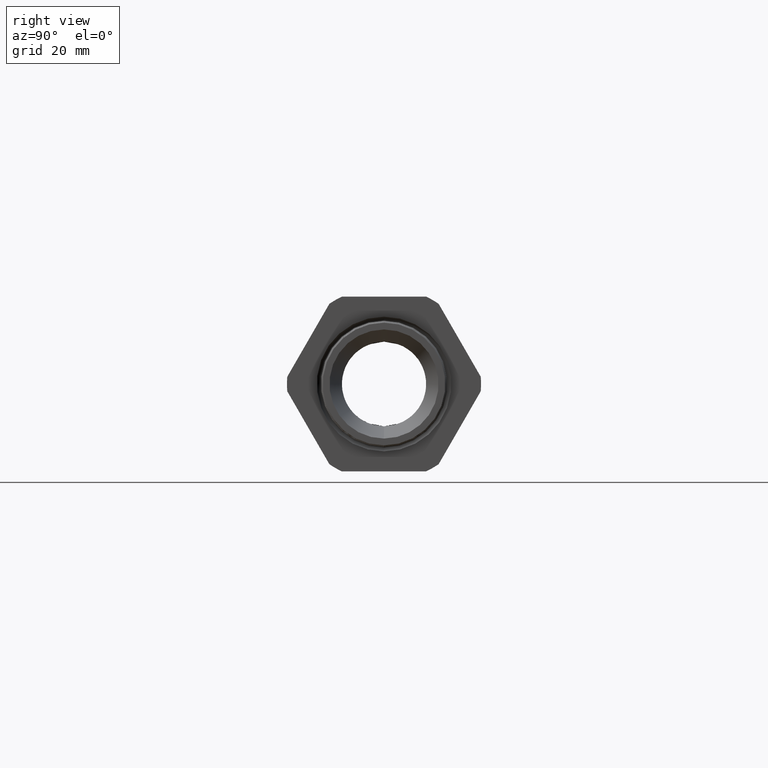
[diagram: clean part render]
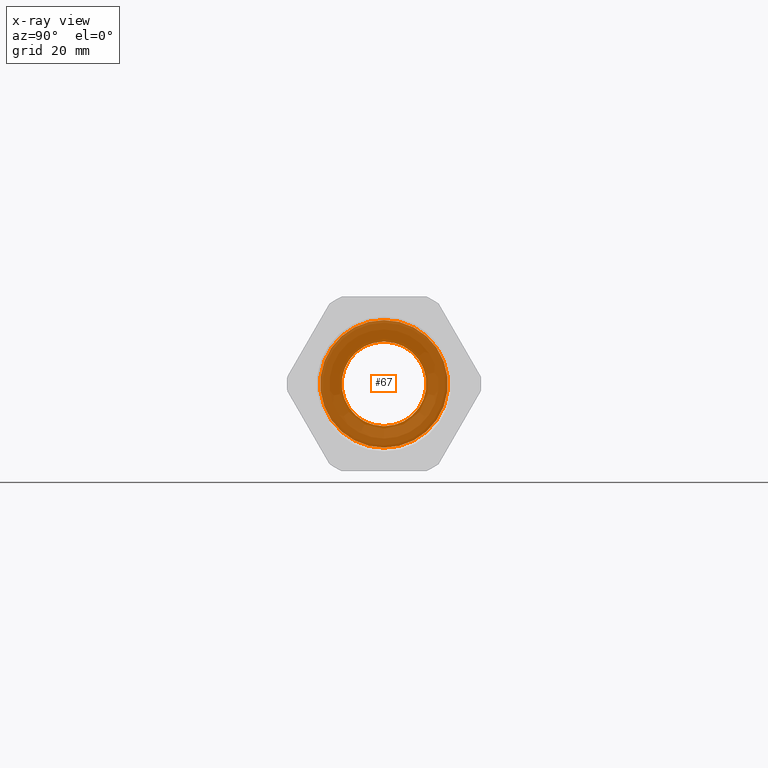
[diagram: x-ray — body ghosted, one internal face saturated and labeled with its STEP entity id]
A machine part, right view, then the same camera in x-ray: the body is ghosted and one INTERNAL B-rep face — a face not visible from any outside direction — is saturated and labeled: STEP entity #67.
In plain terms, the highlighted planar face has unit normal (1, 0, 0).
Its self-contained STEP definition (entity closure, byte-faithful):
#57 = ORIENTED_EDGE ( 'NONE', *, *, #120, .T. ) ;
#61 = VERTEX_POINT ( 'NONE', #10685 ) ;
#66 = ORIENTED_EDGE ( 'NONE', *, *, #111, .T. ) ;
#67 = ADVANCED_FACE ( 'NONE', ( #10677, #10676 ), #10675, .T. ) ;
#91 = EDGE_LOOP ( 'NONE', ( #109, #106 ) ) ;
#95 = VERTEX_POINT ( 'NONE', #10745 ) ;
#100 = EDGE_CURVE ( 'NONE', #61, #95, #10737, .T. ) ;
#106 = ORIENTED_EDGE ( 'NONE', *, *, #181, .F. ) ;
#109 = ORIENTED_EDGE ( 'NONE', *, *, #100, .F. ) ;
#111 = EDGE_CURVE ( 'NONE', #128, #135, #10792, .T. ) ;
#119 = EDGE_LOOP ( 'NONE', ( #57, #66 ) ) ;
#120 = EDGE_CURVE ( 'NONE', #135, #128, #10783, .T. ) ;
#128 = VERTEX_POINT ( 'NONE', #10827 ) ;
#135 = VERTEX_POINT ( 'NONE', #10816 ) ;
#181 = EDGE_CURVE ( 'NONE', #95, #61, #10923, .T. ) ;
#10671 = DIRECTION ( 'NONE',  ( 0.0000000000000000000, 0.0000000000000000000, -1.000000000000000000 ) ) ;
#10672 = DIRECTION ( 'NONE',  ( 1.000000000000000000, 0.0000000000000000000, 0.0000000000000000000 ) ) ;
#10673 = CARTESIAN_POINT ( 'NONE',  ( -1.370551181102362300, 0.4744999999999999800, 0.0000000000000000000 ) ) ;
#10674 = AXIS2_PLACEMENT_3D ( 'NONE', #10673, #10672, #10671 ) ;
#10675 = PLANE ( 'NONE',  #10674 ) ;
#10676 = FACE_BOUND ( 'NONE', #91, .T. ) ;
#10677 = FACE_OUTER_BOUND ( 'NONE', #119, .T. ) ;
#10685 = CARTESIAN_POINT ( 'NONE',  ( -1.370551181102362500, 0.0000000000000000000, -0.3150000000000000000 ) ) ;
#10734 = DIRECTION ( 'NONE',  ( 1.000000000000000000, 0.0000000000000000000, 0.0000000000000000000 ) ) ;
#10735 = CARTESIAN_POINT ( 'NONE',  ( -1.370551181102362500, 0.0000000000000000000, 0.0000000000000000000 ) ) ;
#10736 = AXIS2_PLACEMENT_3D ( 'NONE', #10735, #10734, #10798 ) ;
#10737 = CIRCLE ( 'NONE', #10736, 0.3150000000000000000 ) ;
#10745 = CARTESIAN_POINT ( 'NONE',  ( -1.370551181102362500, 3.857637417314162700E-017, 0.3150000000000000000 ) ) ;
#10779 = DIRECTION ( 'NONE',  ( 0.0000000000000000000, 0.0000000000000000000, -1.000000000000000000 ) ) ;
#10780 = DIRECTION ( 'NONE',  ( 1.000000000000000000, 0.0000000000000000000, 0.0000000000000000000 ) ) ;
#10781 = CARTESIAN_POINT ( 'NONE',  ( -1.370551181102362100, 0.0000000000000000000, 0.0000000000000000000 ) ) ;
#10782 = AXIS2_PLACEMENT_3D ( 'NONE', #10781, #10780, #10779 ) ;
#10783 = CIRCLE ( 'NONE', #10782, 0.4744999999999999800 ) ;
#10788 = DIRECTION ( 'NONE',  ( 0.0000000000000000000, 0.0000000000000000000, -1.000000000000000000 ) ) ;
#10789 = DIRECTION ( 'NONE',  ( 1.000000000000000000, 0.0000000000000000000, 0.0000000000000000000 ) ) ;
#10790 = CARTESIAN_POINT ( 'NONE',  ( -1.370551181102362100, 0.0000000000000000000, 0.0000000000000000000 ) ) ;
#10791 = AXIS2_PLACEMENT_3D ( 'NONE', #10790, #10789, #10788 ) ;
#10792 = CIRCLE ( 'NONE', #10791, 0.4744999999999999800 ) ;
#10798 = DIRECTION ( 'NONE',  ( 0.0000000000000000000, 0.0000000000000000000, -1.000000000000000000 ) ) ;
#10816 = CARTESIAN_POINT ( 'NONE',  ( -1.370551181102362100, 0.0000000000000000000, -0.4744999999999999800 ) ) ;
#10827 = CARTESIAN_POINT ( 'NONE',  ( -1.370551181102362100, 5.810949061954191000E-017, 0.4744999999999999800 ) ) ;
#10919 = DIRECTION ( 'NONE',  ( 0.0000000000000000000, 0.0000000000000000000, -1.000000000000000000 ) ) ;
#10920 = DIRECTION ( 'NONE',  ( 1.000000000000000000, 0.0000000000000000000, 0.0000000000000000000 ) ) ;
#10921 = CARTESIAN_POINT ( 'NONE',  ( -1.370551181102362500, 0.0000000000000000000, 0.0000000000000000000 ) ) ;
#10922 = AXIS2_PLACEMENT_3D ( 'NONE', #10921, #10920, #10919 ) ;
#10923 = CIRCLE ( 'NONE', #10922, 0.3150000000000000000 ) ;